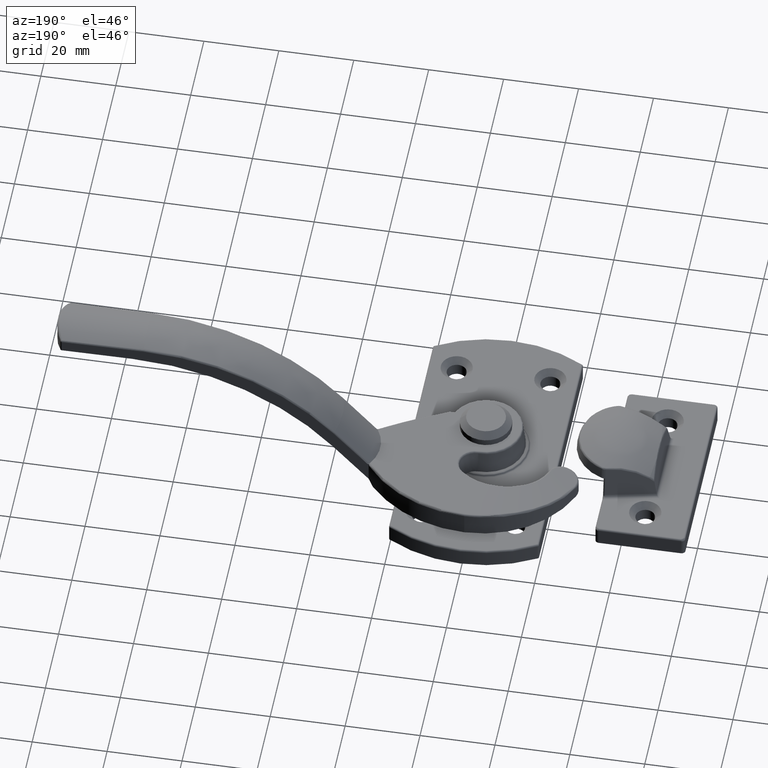
[diagram: clean part render]
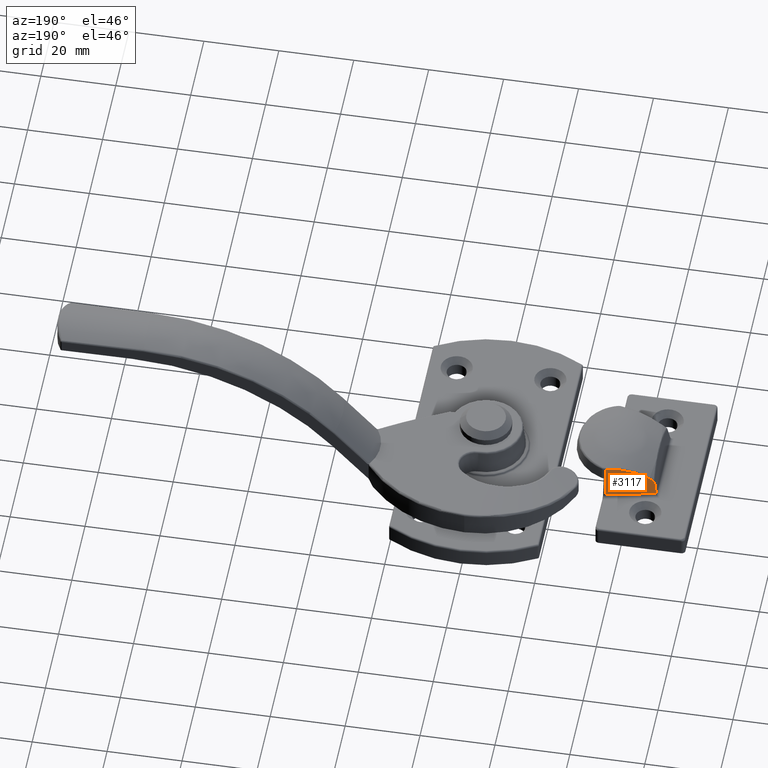
[diagram: same view with one face highlighted and labeled with its STEP entity id]
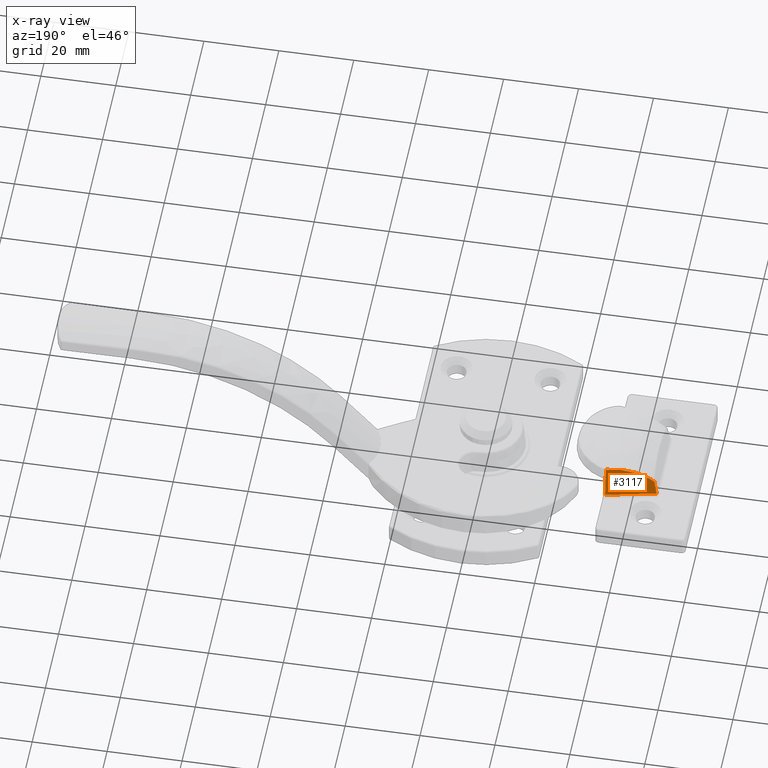
[diagram: x-ray of the same camera — body ghosted, the highlighted face saturated]
A machine part, auxiliary view. The second image highlights one B-rep face of the part: STEP entity #3117.
The next image is the same camera in x-ray: the body ghosted, the highlighted face saturated — about 0% of this face is hidden behind the body in this view.
In plain terms, the highlighted planar face has unit normal (0.2061, -0.962, -0.1789).
Its self-contained STEP definition (entity closure, byte-faithful):
#86=B_SPLINE_CURVE_WITH_KNOTS('',3,(#4947,#4948,#4949,#4950,#4951),
 .UNSPECIFIED.,.F.,.F.,(4,1,4),(0.,0.680953270433572,1.19166822325875),
 .UNSPECIFIED.);
#342=CIRCLE('',#3389,17.1840178265594);
#350=CIRCLE('',#3398,2161.97498913059);
#590=FACE_OUTER_BOUND('',#820,.T.);
#820=EDGE_LOOP('',(#2365,#2366,#2367,#2368,#2369,#2370,#2371));
#1032=LINE('',#5171,#1207);
#1033=LINE('',#5173,#1208);
#1034=LINE('',#5175,#1209);
#1035=LINE('',#5176,#1210);
#1207=VECTOR('',#3995,0.039361814936894);
#1208=VECTOR('',#3996,5.26765671328128);
#1209=VECTOR('',#3997,13.5483729327486);
#1210=VECTOR('',#3998,3.83207401095089);
#1414=VERTEX_POINT('',#4909);
#1415=VERTEX_POINT('',#4911);
#1417=VERTEX_POINT('',#4945);
#1429=VERTEX_POINT('',#5168);
#1430=VERTEX_POINT('',#5170);
#1431=VERTEX_POINT('',#5172);
#1432=VERTEX_POINT('',#5174);
#1751=EDGE_CURVE('',#1414,#1415,#342,.T.);
#1754=EDGE_CURVE('',#1417,#1414,#86,.T.);
#1772=EDGE_CURVE('',#1429,#1417,#350,.T.);
#1773=EDGE_CURVE('',#1430,#1429,#1032,.T.);
#1774=EDGE_CURVE('',#1431,#1430,#1033,.T.);
#1775=EDGE_CURVE('',#1432,#1431,#1034,.T.);
#1776=EDGE_CURVE('',#1432,#1415,#1035,.T.);
#2365=ORIENTED_EDGE('',*,*,#1751,.F.);
#2366=ORIENTED_EDGE('',*,*,#1754,.F.);
#2367=ORIENTED_EDGE('',*,*,#1772,.F.);
#2368=ORIENTED_EDGE('',*,*,#1773,.F.);
#2369=ORIENTED_EDGE('',*,*,#1774,.F.);
#2370=ORIENTED_EDGE('',*,*,#1775,.F.);
#2371=ORIENTED_EDGE('',*,*,#1776,.T.);
#3007=PLANE('',#3397);
#3117=ADVANCED_FACE('',(#590),#3007,.F.);
#3389=AXIS2_PLACEMENT_3D('',#4912,#3975,#3976);
#3397=AXIS2_PLACEMENT_3D('',#5167,#3991,#3992);
#3398=AXIS2_PLACEMENT_3D('',#5169,#3993,#3994);
#3975=DIRECTION('center_axis',(0.206149365692982,-0.962030373233803,-0.178885438200014));
#3976=DIRECTION('ref_axis',(-0.617214136700923,-0.269697815613961,0.739127727601659));
#3991=DIRECTION('center_axis',(0.20614936569296,-0.962030373233813,-0.178885438199983));
#3992=DIRECTION('ref_axis',(0.,0.182812145122538,-0.98314786252918));
#3993=DIRECTION('center_axis',(0.206149365752222,-0.962030373221685,-0.178885438196914));
#3994=DIRECTION('ref_axis',(0.978428618297741,0.200150599227931,0.0511583475561211));
#3995=DIRECTION('',(0.977802414077409,0.209529088730874,0.));
#3996=DIRECTION('',(0.,-0.182812145122538,0.98314786252918));
#3997=DIRECTION('',(0.977802414077409,0.209529088730874,4.96506830649455E-18));
#3998=DIRECTION('',(0.177043745641093,-0.143124959538436,0.973740601026009));
#4909=CARTESIAN_POINT('',(0.225232128070606,9.92951741462398,10.632385600485));
#4911=CARTESIAN_POINT('',(-1.17226170683611,9.83084329362532,9.55256061239942));
#4912=CARTESIAN_POINT('Origin',(9.4339570210365,14.4653353649198,-3.14862343481264));
#4945=CARTESIAN_POINT('',(11.3996652320934,11.7445744461802,13.748694610729));
#4947=CARTESIAN_POINT('Ctrl Pts',(11.3996652320934,11.7445744461802,13.748694610729));
#4948=CARTESIAN_POINT('Ctrl Pts',(9.19103163825918,11.2432289690965,13.8996356951042));
#4949=CARTESIAN_POINT('Ctrl Pts',(5.21757262001545,10.4835245193657,13.4062064826194));
#4950=CARTESIAN_POINT('Ctrl Pts',(1.61900584473733,10.0477561603867,11.6027066318675));
#4951=CARTESIAN_POINT('Ctrl Pts',(0.225232128070605,9.92951741462398,10.632385600485));
#5167=CARTESIAN_POINT('Origin',(12.4190581774617,11.5443951718452,16.));
#5168=CARTESIAN_POINT('',(11.4354133947746,12.2633427876838,10.9999999991983));
#5169=CARTESIAN_POINT('Origin',(-2103.93853617721,-420.976015144105,-96.8543732908542));
#5170=CARTESIAN_POINT('',(11.3969253171535,12.2550953422516,11.));
#5171=CARTESIAN_POINT('',(11.4567890955716,12.2679232947698,11.));
#5172=CARTESIAN_POINT('',(11.3969253171535,13.2180869657757,5.82111456180002));
#5173=CARTESIAN_POINT('',(11.3969253171535,11.3326866946653,15.960633713067));
#5174=CARTESIAN_POINT('',(-1.8507064433091,10.3793087313909,5.82111456180001));
#5175=CARTESIAN_POINT('',(4.91176914776489,11.8284106437639,5.82111456180002));
#5176=CARTESIAN_POINT('',(0.140432838611508,8.76964029533101,16.7723806123633));